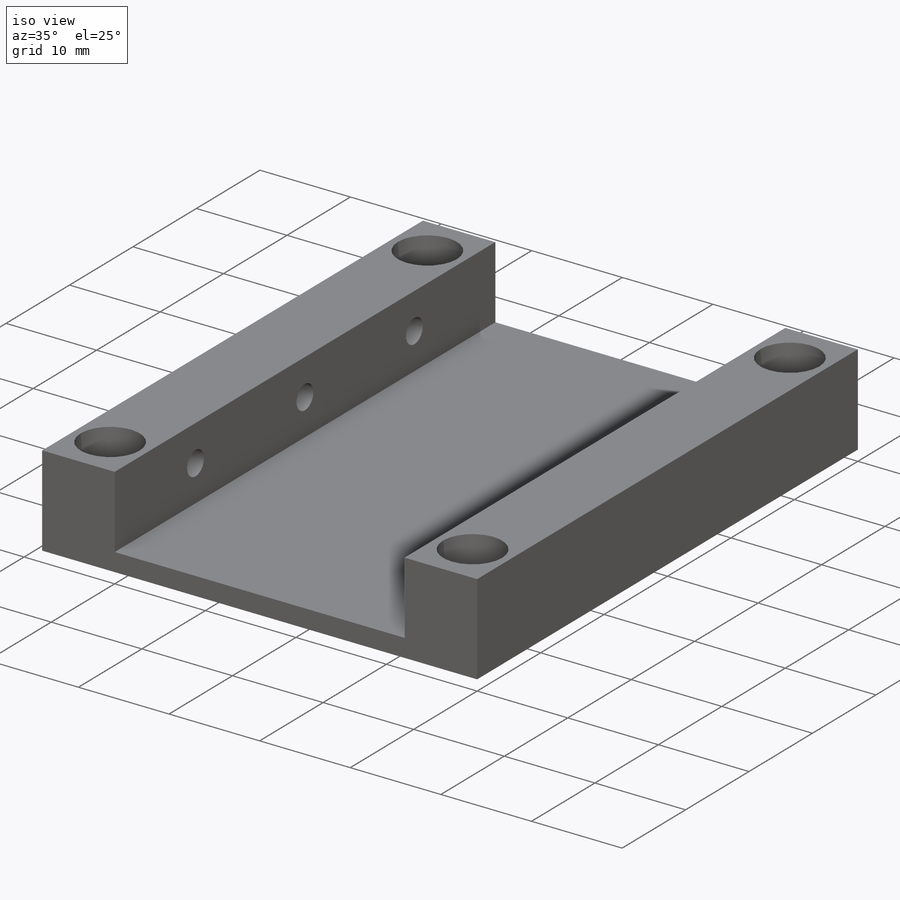
[diagram: iso view]
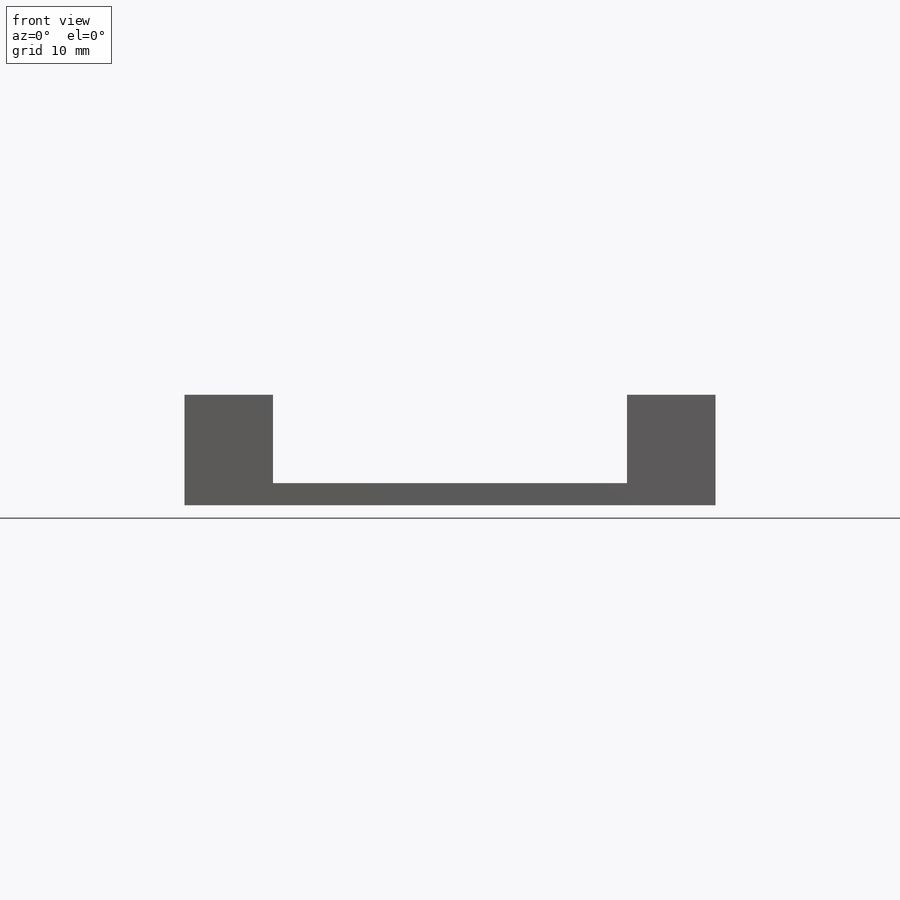
[diagram: front view]
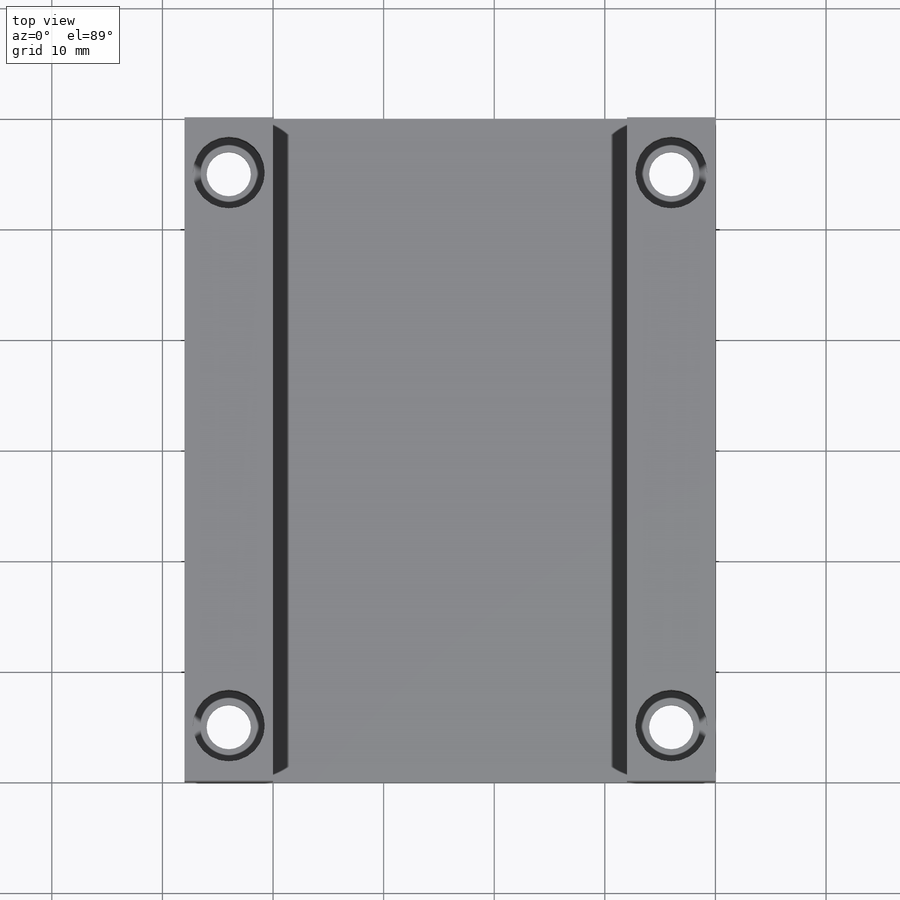
[diagram: top view]
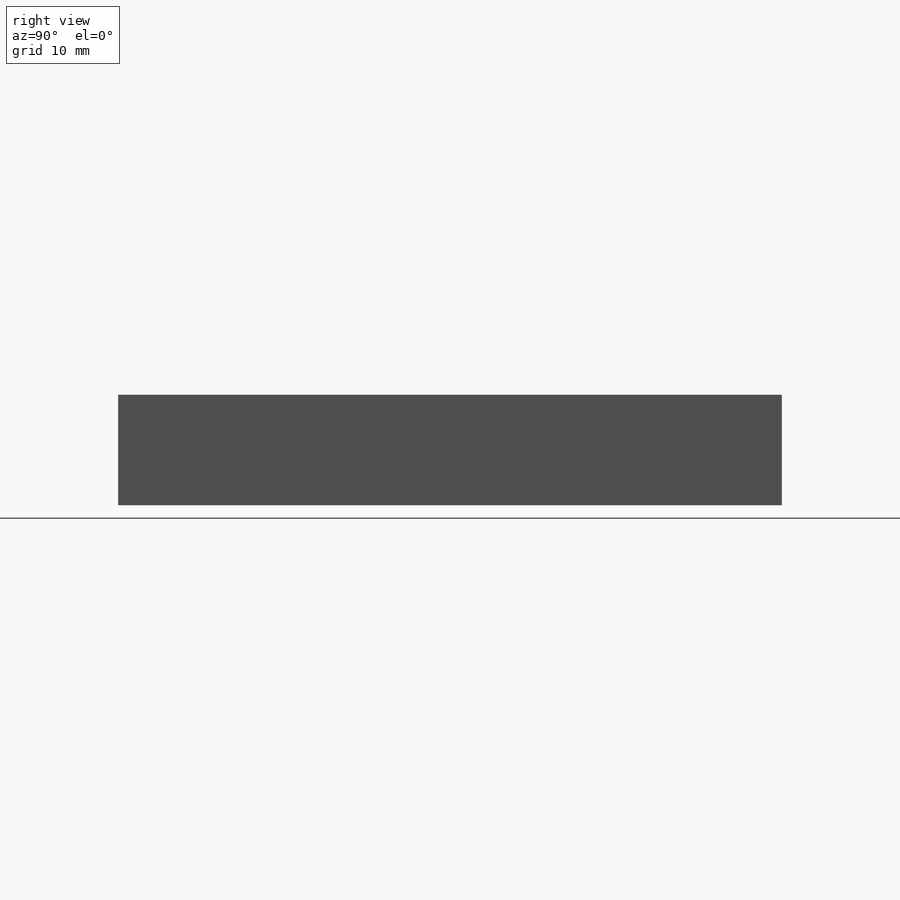
[diagram: right view]
SOLIDWORKS PART (.sldprt)
format: sldprt  version: not decoded by parser v0  size: 245,760 bytes
history: native  units: mm
features: sketch x5, cut_extrude x4, material x1, extrude x1 (+12 scaffold rows collapsed)
feature tree (23):
  scaffold x12  (default folders/planes/origin — collapsed)
  material  "Material <not specified>"
  sketch  "Sketch1"  dims[c1.D1=~27.261975mm c1.D2=~142.214541mm c2.D1=35.0mm c2.D2=8.0mm c3.D1=32.0mm c3.D3=8.0mm c3.D4=10.0mm]
  extrude  "Boss-Extrude1"  Depth=60mm
  sketch  "Sketch3"  dims[c1.D1=6.5mm c1.D4=6.5mm c1.D5=6.5mm c1.D6=6.5mm c2.D4=62.0mm c2.D5=30.0mm c2.D6=5.0mm c2.D7=5.0mm c3.D4=5.0mm c3.D2=2.0 c3.D3=2.0]
  cut_extrude  "Cut-Extrude1"  Depth=8mm
  sketch  "Sketch4"  dims[D1=4.0mm D4=50.0mm D2=2.0 D3=2.0]
  cut_extrude  "Cut-Extrude2"  Depth=8mm
  sketch  "Sketch5"  dims[c1.D1=2.64mm c1.D4=2.64mm c2.D1=~2.797823mm c2.D2=4.5mm c2.D4=4.5mm c2.D3=3.0]
  cut_extrude  "Cut-Extrude3"  [1 undecoded]
  sketch  "Sketch6"  dims[D1=6.5mm D3=10.0mm D2=3.0]
  cut_extrude  "Cut-Extrude4"  Depth=6mm
decode coverage: 9 of 10 modeling features carry decoded parameters
note: ~ marks probable driven/reference dimensions
note: 1 parameter value undecoded
note: suppression state not decoded; provenance and decode notes live in map.json
